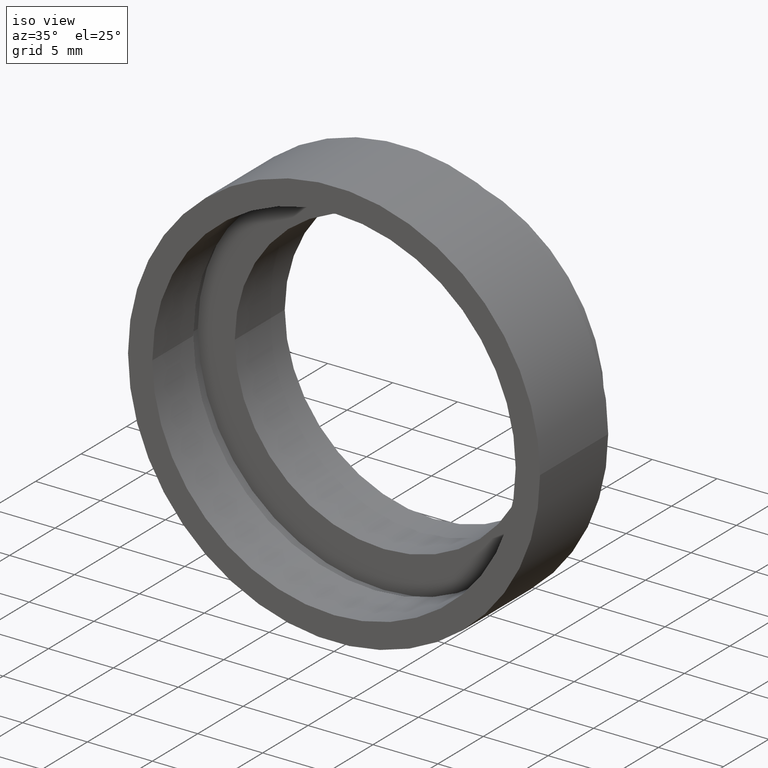
[diagram: clean part render]
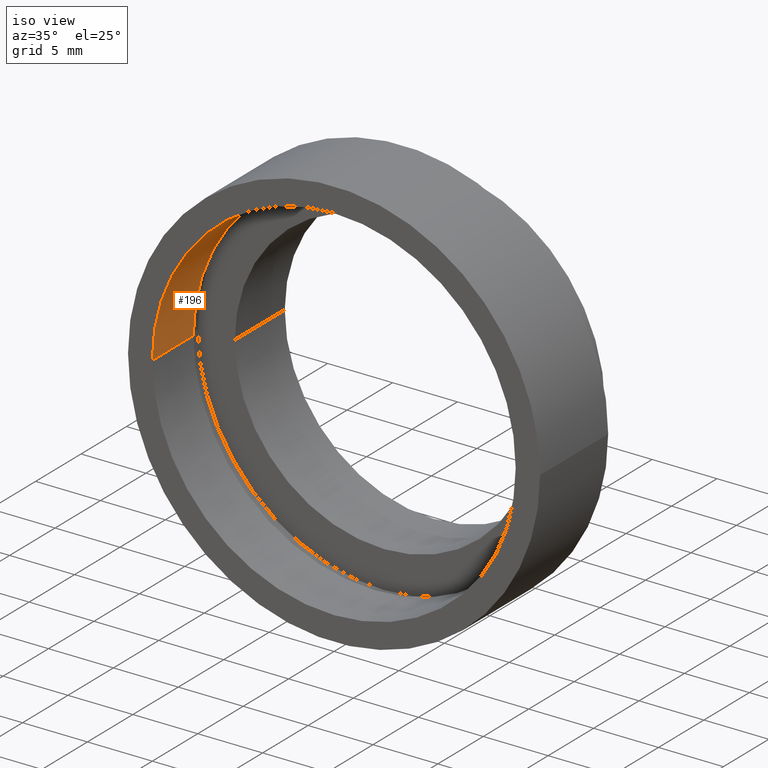
[diagram: same view with one face highlighted and labeled with its STEP entity id]
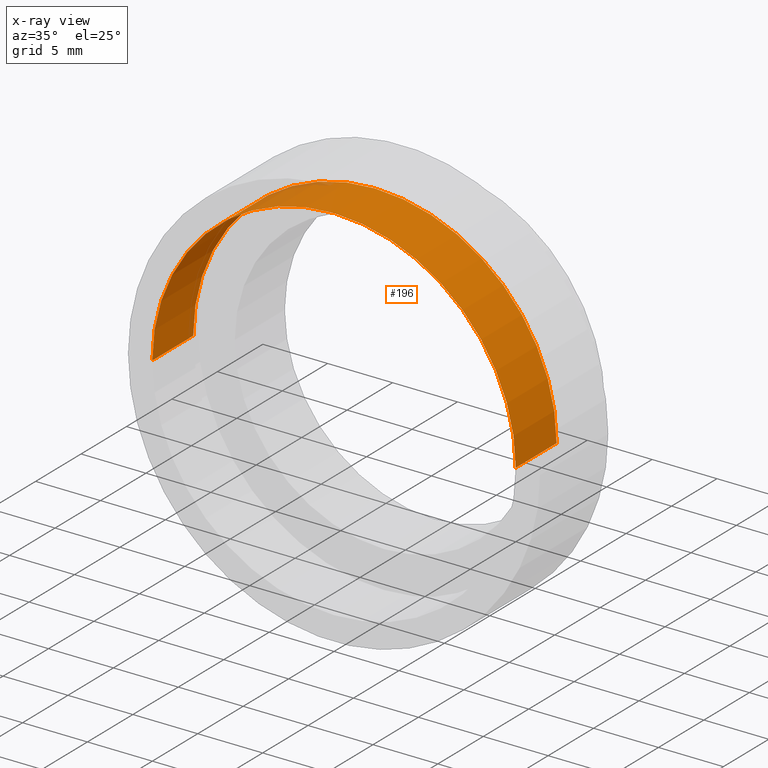
[diagram: x-ray of the same camera — body ghosted, the highlighted face saturated]
A machine part, iso view. The second image highlights one B-rep face of the part: STEP entity #196.
The next image is the same camera in x-ray: the body ghosted, the highlighted face saturated — about 1% of this face is hidden behind the body in this view.
In plain terms, the highlighted cylindrical surface (partial cylindrical patch) has radius 14 mm, axis along (-0, 1, -0).
Its self-contained STEP definition (entity closure, byte-faithful):
#29 = CARTESIAN_POINT ( 'NONE',  ( 14.00000000000000200, 16.88601823708207700, 1.714505518806294800E-015 ) ) ;
#50 = DIRECTION ( 'NONE',  ( -1.224646799147351000E-016, 1.000000000000000000, -0.0000000000000000000 ) ) ;
#53 = CARTESIAN_POINT ( 'NONE',  ( 0.0000000000000000000, 16.88601823708207700, 0.0000000000000000000 ) ) ;
#83 = EDGE_LOOP ( 'NONE', ( #295, #499, #179, #391 ) ) ;
#109 = CARTESIAN_POINT ( 'NONE',  ( 14.00000000000000400, 4.500000000000000900, 1.714505518806294800E-015 ) ) ;
#116 = CARTESIAN_POINT ( 'NONE',  ( 2.067940818438636100E-015, 0.0000000000000000000, 0.0000000000000000000 ) ) ;
#117 = CARTESIAN_POINT ( 'NONE',  ( 1.516849758822328100E-015, 4.499999999999999100, 0.0000000000000000000 ) ) ;
#148 = DIRECTION ( 'NONE',  ( -1.224646799147351000E-016, 1.000000000000000000, -0.0000000000000000000 ) ) ;
#155 = CARTESIAN_POINT ( 'NONE',  ( -14.00000000000000200, 16.88601823708207700, 0.0000000000000000000 ) ) ;
#157 = DIRECTION ( 'NONE',  ( -1.224646799147351000E-016, 1.000000000000000000, -0.0000000000000000000 ) ) ;
#179 = ORIENTED_EDGE ( 'NONE', *, *, #532, .T. ) ;
#196 = ADVANCED_FACE ( 'NONE', ( #505 ), #318, .F. ) ;
#202 = DIRECTION ( 'NONE',  ( -1.000000000000000000, -1.239088197126290600E-016, 0.0000000000000000000 ) ) ;
#220 = CARTESIAN_POINT ( 'NONE',  ( 14.00000000000000400, 1.714505518806291700E-015, 1.714505518806294800E-015 ) ) ;
#258 = DIRECTION ( 'NONE',  ( -1.224646799147351000E-016, 1.000000000000000000, -0.0000000000000000000 ) ) ;
#286 = EDGE_CURVE ( 'NONE', #395, #459, #569, .T. ) ;
#288 = AXIS2_PLACEMENT_3D ( 'NONE', #117, #157, #202 ) ;
#295 = ORIENTED_EDGE ( 'NONE', *, *, #286, .F. ) ;
#318 = CYLINDRICAL_SURFACE ( 'NONE', #555, 14.00000000000000200 ) ;
#319 = CIRCLE ( 'NONE', #288, 14.00000000000000200 ) ;
#350 = DIRECTION ( 'NONE',  ( -1.000000000000000000, 0.0000000000000000000, 0.0000000000000000000 ) ) ;
#355 = CARTESIAN_POINT ( 'NONE',  ( -14.00000000000000000, -1.714505518806291700E-015, 0.0000000000000000000 ) ) ;
#357 = CARTESIAN_POINT ( 'NONE',  ( -14.00000000000000000, 4.499999999999997300, 0.0000000000000000000 ) ) ;
#363 = DIRECTION ( 'NONE',  ( -1.224646799147351000E-016, 1.000000000000000000, -0.0000000000000000000 ) ) ;
#391 = ORIENTED_EDGE ( 'NONE', *, *, #476, .T. ) ;
#395 = VERTEX_POINT ( 'NONE', #220 ) ;
#412 = DIRECTION ( 'NONE',  ( -1.000000000000000000, -1.224646799147351000E-016, 0.0000000000000000000 ) ) ;
#442 = VECTOR ( 'NONE', #363, 1000.000000000000000 ) ;
#459 = VERTEX_POINT ( 'NONE', #109 ) ;
#470 = VERTEX_POINT ( 'NONE', #357 ) ;
#476 = EDGE_CURVE ( 'NONE', #470, #459, #319, .T. ) ;
#488 = VERTEX_POINT ( 'NONE', #355 ) ;
#494 = CIRCLE ( 'NONE', #514, 14.00000000000000200 ) ;
#499 = ORIENTED_EDGE ( 'NONE', *, *, #536, .F. ) ;
#505 = FACE_OUTER_BOUND ( 'NONE', #83, .T. ) ;
#513 = VECTOR ( 'NONE', #148, 1000.000000000000000 ) ;
#514 = AXIS2_PLACEMENT_3D ( 'NONE', #116, #258, #412 ) ;
#532 = EDGE_CURVE ( 'NONE', #488, #470, #542, .T. ) ;
#536 = EDGE_CURVE ( 'NONE', #488, #395, #494, .T. ) ;
#542 = LINE ( 'NONE', #155, #513 ) ;
#555 = AXIS2_PLACEMENT_3D ( 'NONE', #53, #50, #350 ) ;
#569 = LINE ( 'NONE', #29, #442 ) ;